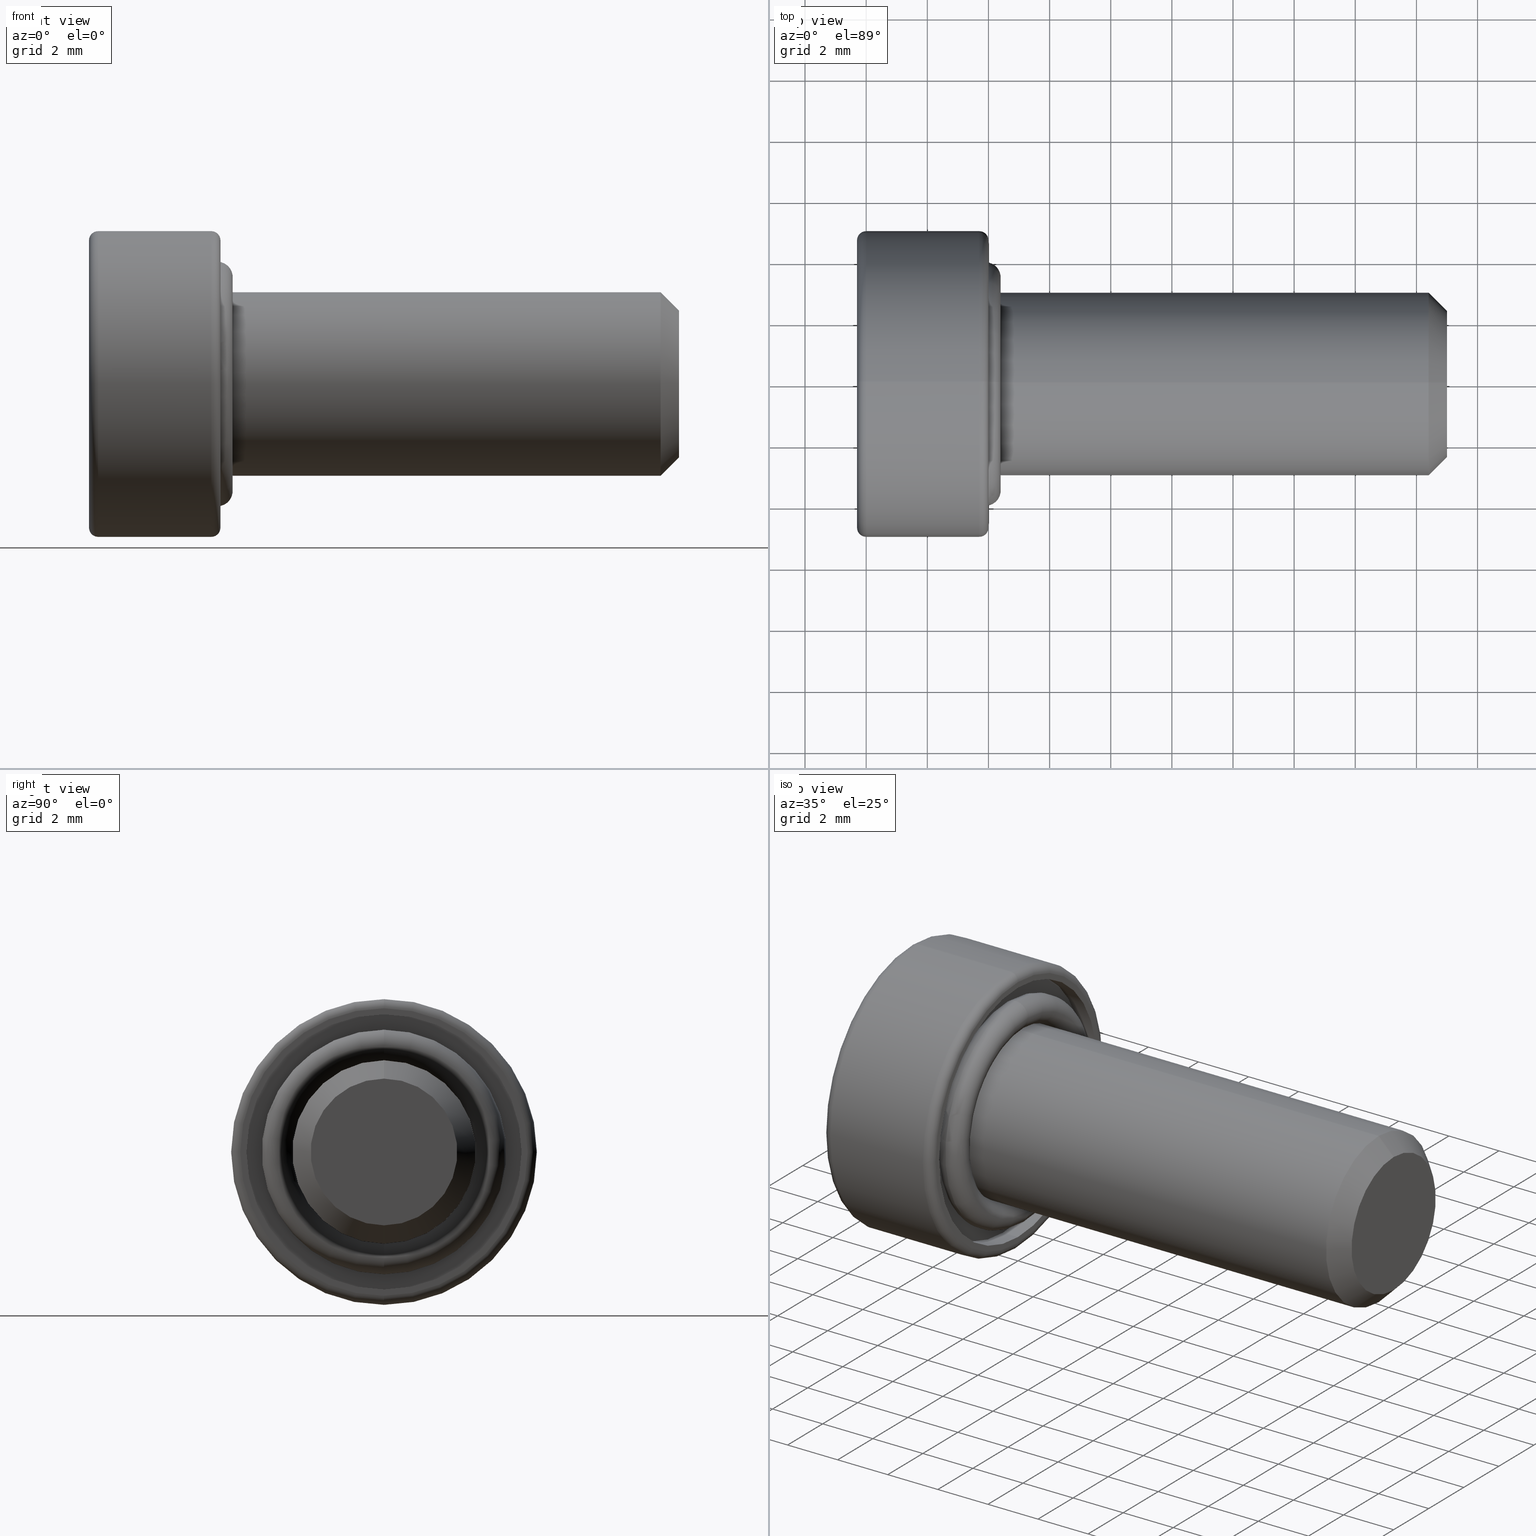
[diagram: canonical four-view strip — front | top / right | iso, engineering-drawing reading convention]
A machine part, canonical four-view strip (front | top / right | iso — engineering-drawing reading convention). The complete STEP part file that produces these views, byte-faithful:
ISO-10303-21;
HEADER;
FILE_DESCRIPTION (( 'STEP AP214' ),
    '1' );
FILE_NAME ('TL_418_M6_15.STEP',
    '2016-01-25T00:23:31',
    ( '' ),
    ( '' ),
    'SwSTEP 2.0',
    'SolidWorks 2015',
    '' );
FILE_SCHEMA (( 'AUTOMOTIVE_DESIGN' ));
ENDSEC;

DATA;
#1 = DIRECTION ( 'NONE',  ( 1.000000000000000000, 0.0000000000000000000, 0.0000000000000000000 ) ) ;
#2 = EDGE_CURVE ( 'NONE', #225, #95, #173, .T. ) ;
#3 = CARTESIAN_POINT ( 'NONE',  ( -0.1000000000000000700, 0.0000000000000000000, 0.0000000000000000000 ) ) ;
#4 = ORIENTED_EDGE ( 'NONE', *, *, #752, .F. ) ;
#5 = PLANE ( 'NONE',  #93 ) ;
#6 = CARTESIAN_POINT ( 'NONE',  ( -0.1000000000000000100, 0.0000000000000000000, 0.0000000000000000000 ) ) ;
#7 = DIRECTION ( 'NONE',  ( 0.0000000000000000000, 0.0000000000000000000, -1.000000000000000000 ) ) ;
#8 = CARTESIAN_POINT ( 'NONE',  ( -0.5999999999999999800, 0.0000000000000000000, 0.0000000000000000000 ) ) ;
#9 = CYLINDRICAL_SURFACE ( 'NONE', #13, 3.000000000000000400 ) ;
#10 = APPLICATION_CONTEXT ( 'automotive_design' ) ;
#11 = CARTESIAN_POINT ( 'NONE',  ( -0.1000000000000000100, 0.0000000000000000000, 0.0000000000000000000 ) ) ;
#12 = MECHANICAL_DESIGN_GEOMETRIC_PRESENTATION_REPRESENTATION (  '', ( #738 ), #50 ) ;
#13 = AXIS2_PLACEMENT_3D ( 'NONE', #324, #341, #750 ) ;
#14 = VERTEX_POINT ( 'NONE', #270 ) ;
#15 = EDGE_CURVE ( 'NONE', #808, #364, #651, .T. ) ;
#16 = DIRECTION ( 'NONE',  ( 0.0000000000000000000, 0.0000000000000000000, 1.000000000000000000 ) ) ;
#17 = DIRECTION ( 'NONE',  ( 0.0000000000000000000, 0.5000000000000000000, -0.8660254037844386000 ) ) ;
#18 = ORIENTED_EDGE ( 'NONE', *, *, #398, .F. ) ;
#19 = VECTOR ( 'NONE', #640, 1000.000000000000200 ) ;
#20 = CARTESIAN_POINT ( 'NONE',  ( 0.0000000000000000000, 0.0000000000000000000, 0.0000000000000000000 ) ) ;
#21 = DIRECTION ( 'NONE',  ( 1.000000000000000000, -0.0000000000000000000, -0.0000000000000000000 ) ) ;
#22 = ORIENTED_EDGE ( 'NONE', *, *, #24, .F. ) ;
#23 = EDGE_LOOP ( 'NONE', ( #394, #602 ) ) ;
#24 = EDGE_CURVE ( 'NONE', #42, #39, #818, .T. ) ;
#25 = EDGE_CURVE ( 'NONE', #451, #454, #326, .T. ) ;
#26 = EDGE_LOOP ( 'NONE', ( #360, #665, #114, #678 ) ) ;
#27 = ORIENTED_EDGE ( 'NONE', *, *, #330, .F. ) ;
#28 = DIRECTION ( 'NONE',  ( 0.0000000000000000000, 0.0000000000000000000, -1.000000000000000000 ) ) ;
#29 = PRESENTATION_LAYER_ASSIGNMENT (  '', '', ( #805 ) ) ;
#30 = CARTESIAN_POINT ( 'NONE',  ( 0.0000000000000000000, 0.0000000000000000000, 0.0000000000000000000 ) ) ;
#31 = DIRECTION ( 'NONE',  ( 0.0000000000000000000, 0.0000000000000000000, -1.000000000000000000 ) ) ;
#32 = AXIS2_PLACEMENT_3D ( 'NONE', #8, #192, #392 ) ;
#33 = TOROIDAL_SURFACE ( 'NONE', #739, 3.499999999999999600, 0.5000000000000001100 ) ;
#34 = DIRECTION ( 'NONE',  ( 0.0000000000000000000, 0.0000000000000000000, -1.000000000000000000 ) ) ;
#35 = EDGE_CURVE ( 'NONE', #218, #160, #503, .T. ) ;
#36 = FILL_AREA_STYLE ('',( #342 ) ) ;
#37 = ADVANCED_FACE ( 'NONE', ( #799 ), #134, .T. ) ;
#38 = LINE ( 'NONE', #567, #19 ) ;
#39 = VERTEX_POINT ( 'NONE', #205 ) ;
#40 = ORIENTED_EDGE ( 'NONE', *, *, #710, .F. ) ;
#41 = EDGE_LOOP ( 'NONE', ( #135, #375 ) ) ;
#42 = VERTEX_POINT ( 'NONE', #424 ) ;
#43 = PLANE ( 'NONE',  #495 ) ;
#44 = SHAPE_REPRESENTATION_RELATIONSHIP ( 'NONE' , 'NONE' ,  #562, #252 ) ;
#45 = FACE_OUTER_BOUND ( 'NONE', #526, .T. ) ;
#46 = ORIENTED_EDGE ( 'NONE', *, *, #731, .F. ) ;
#47 = DIRECTION ( 'NONE',  ( -0.0000000000000000000, -1.000000000000000000, -0.0000000000000000000 ) ) ;
#48 = ORIENTED_EDGE ( 'NONE', *, *, #414, .F. ) ;
#49 = UNCERTAINTY_MEASURE_WITH_UNIT (LENGTH_MEASURE( 1.000000000000000100E-005 ), #357, 'distance_accuracy_value', 'NONE');
#50 =( GEOMETRIC_REPRESENTATION_CONTEXT ( 3 ) GLOBAL_UNCERTAINTY_ASSIGNED_CONTEXT ( ( #740 ) ) GLOBAL_UNIT_ASSIGNED_CONTEXT ( ( #162, #92, #396 ) ) REPRESENTATION_CONTEXT ( 'NONE', 'WORKASPACE' ) );
#51 = ADVANCED_FACE ( 'NONE', ( #626 ), #523, .F. ) ;
#52 = PLANE ( 'NONE',  #145 ) ;
#53 = CIRCLE ( 'NONE', #299, 2.999999999999999600 ) ;
#54 = PRESENTATION_STYLE_ASSIGNMENT (( #264 ) ) ;
#55 = VERTEX_POINT ( 'NONE', #686 ) ;
#56 = ADVANCED_FACE ( 'NONE', ( #609 ), #436, .T. ) ;
#57 = EDGE_CURVE ( 'NONE', #199, #267, #783, .T. ) ;
#58 = ORIENTED_EDGE ( 'NONE', *, *, #346, .F. ) ;
#59 = DIRECTION ( 'NONE',  ( 0.0000000000000000000, 0.0000000000000000000, -1.000000000000000000 ) ) ;
#60 = ADVANCED_FACE ( 'NONE', ( #155 ), #760, .F. ) ;
#61 = DIRECTION ( 'NONE',  ( 0.0000000000000000000, 0.0000000000000000000, -1.000000000000000000 ) ) ;
#62 = EDGE_CURVE ( 'NONE', #451, #239, #112, .T. ) ;
#63 = APPLICATION_PROTOCOL_DEFINITION ( 'draft international standard', 'automotive_design', 1998, #10 ) ;
#64 = CARTESIAN_POINT ( 'NONE',  ( -4.299999999999999800, 6.123233995736765300E-016, 5.000000000000000000 ) ) ;
#65 = VERTEX_POINT ( 'NONE', #548 ) ;
#66 = ADVANCED_FACE ( 'NONE', ( #756 ), #471, .T. ) ;
#67 = FACE_BOUND ( 'NONE', #787, .T. ) ;
#68 = CARTESIAN_POINT ( 'NONE',  ( 15.00000000000000000, 0.0000000000000000000, 0.0000000000000000000 ) ) ;
#69 = MECHANICAL_DESIGN_GEOMETRIC_PRESENTATION_REPRESENTATION (  '', ( #805 ), #116 ) ;
#70 = CARTESIAN_POINT ( 'NONE',  ( -0.5999999999999999800, 0.0000000000000000000, 0.0000000000000000000 ) ) ;
#71 = ORIENTED_EDGE ( 'NONE', *, *, #786, .F. ) ;
#72 = EDGE_LOOP ( 'NONE', ( #22, #654, #754, #747 ) ) ;
#73 = AXIS2_PLACEMENT_3D ( 'NONE', #777, #290, #358 ) ;
#74 = AXIS2_PLACEMENT_3D ( 'NONE', #152, #734, #16 ) ;
#75 = ADVANCED_FACE ( 'NONE', ( #292 ), #403, .T. ) ;
#76 = DIRECTION ( 'NONE',  ( 0.0000000000000000000, 0.0000000000000000000, -1.000000000000000000 ) ) ;
#77 = ORIENTED_EDGE ( 'NONE', *, *, #668, .T. ) ;
#78 = ADVANCED_FACE ( 'NONE', ( #259 ), #421, .T. ) ;
#79 = ORIENTED_EDGE ( 'NONE', *, *, #291, .F. ) ;
#80 = DIRECTION ( 'NONE',  ( 1.000000000000000000, -0.0000000000000000000, -0.0000000000000000000 ) ) ;
#81 = DIRECTION ( 'NONE',  ( 0.0000000000000000000, 1.224646799147353200E-016, 1.000000000000000000 ) ) ;
#82 = EDGE_CURVE ( 'NONE', #733, #708, #730, .T. ) ;
#83 = ORIENTED_EDGE ( 'NONE', *, *, #166, .F. ) ;
#84 = DIRECTION ( 'NONE',  ( 0.0000000000000000000, 0.0000000000000000000, -1.000000000000000000 ) ) ;
#85 = CARTESIAN_POINT ( 'NONE',  ( -1.800000000000000000, -2.309401076758518000, 8.673617379884035500E-016 ) ) ;
#86 = CARTESIAN_POINT ( 'NONE',  ( -1.800000000000000000, -1.154700538379260100, 2.000000000000015100 ) ) ;
#87 = ORIENTED_EDGE ( 'NONE', *, *, #731, .T. ) ;
#88 = VECTOR ( 'NONE', #265, 1000.000000000000100 ) ;
#89 = FACE_OUTER_BOUND ( 'NONE', #72, .T. ) ;
#90 = VERTEX_POINT ( 'NONE', #581 ) ;
#91 = ADVANCED_FACE ( 'NONE', ( #97 ), #43, .F. ) ;
#92 =( NAMED_UNIT ( * ) PLANE_ANGLE_UNIT ( ) SI_UNIT ( $, .RADIAN. ) );
#93 = AXIS2_PLACEMENT_3D ( 'NONE', #652, #517, #59 ) ;
#94 = CARTESIAN_POINT ( 'NONE',  ( 14.40000000000000000, 3.673940397442060400E-016, -3.000000000000000400 ) ) ;
#95 = VERTEX_POINT ( 'NONE', #369 ) ;
#96 = CARTESIAN_POINT ( 'NONE',  ( -1.800000000000000000, 1.154700538379260600, -2.000000000000013800 ) ) ;
#97 = FACE_OUTER_BOUND ( 'NONE', #707, .T. ) ;
#98 = APPLICATION_CONTEXT ( 'automotive_design' ) ;
#99 = VERTEX_POINT ( 'NONE', #612 ) ;
#100 = SURFACE_SIDE_STYLE ('',( #229 ) ) ;
#101 = AXIS2_PLACEMENT_3D ( 'NONE', #429, #431, #224 ) ;
#102 = AXIS2_PLACEMENT_3D ( 'NONE', #430, #266, #489 ) ;
#103 = LINE ( 'NONE', #221, #228 ) ;
#104 = FACE_OUTER_BOUND ( 'NONE', #41, .T. ) ;
#105 = ORIENTED_EDGE ( 'NONE', *, *, #233, .T. ) ;
#106 = ORIENTED_EDGE ( 'NONE', *, *, #531, .F. ) ;
#107 = ORIENTED_EDGE ( 'NONE', *, *, #488, .T. ) ;
#108 = EDGE_CURVE ( 'NONE', #160, #225, #714, .T. ) ;
#109 = EDGE_CURVE ( 'NONE', #708, #267, #547, .T. ) ;
#110 = EDGE_LOOP ( 'NONE', ( #198, #107, #370, #71 ) ) ;
#111 = LINE ( 'NONE', #781, #258 ) ;
#112 = CIRCLE ( 'NONE', #806, 0.2999999999999999300 ) ;
#113 = EDGE_LOOP ( 'NONE', ( #744, #726, #556, #230 ) ) ;
#114 = ORIENTED_EDGE ( 'NONE', *, *, #398, .T. ) ;
#115 = CARTESIAN_POINT ( 'NONE',  ( -0.2999999999999999300, 0.0000000000000000000, 0.0000000000000000000 ) ) ;
#116 =( GEOMETRIC_REPRESENTATION_CONTEXT ( 3 ) GLOBAL_UNCERTAINTY_ASSIGNED_CONTEXT ( ( #347 ) ) GLOBAL_UNIT_ASSIGNED_CONTEXT ( ( #599, #269, #410 ) ) REPRESENTATION_CONTEXT ( 'NONE', 'WORKASPACE' ) );
#117 = AXIS2_PLACEMENT_3D ( 'NONE', #784, #281, #356 ) ;
#118 = AXIS2_PLACEMENT_3D ( 'NONE', #773, #552, #621 ) ;
#119 = EDGE_LOOP ( 'NONE', ( #87, #550, #83, #170 ) ) ;
#120 = ADVANCED_FACE ( 'NONE', ( #67, #237 ), #623, .F. ) ;
#121 = DIRECTION ( 'NONE',  ( -1.000000000000000000, 0.0000000000000000000, 0.0000000000000000000 ) ) ;
#122 = LINE ( 'NONE', #64, #600 ) ;
#123 = VECTOR ( 'NONE', #147, 1000.000000000000000 ) ;
#124 = ORIENTED_EDGE ( 'NONE', *, *, #109, .T. ) ;
#125 = DIRECTION ( 'NONE',  ( 0.0000000000000000000, 0.0000000000000000000, -1.000000000000000000 ) ) ;
#126 = CARTESIAN_POINT ( 'NONE',  ( -4.299999999999999800, -2.309401076758518000, 8.673617379884035500E-016 ) ) ;
#127 = ORIENTED_EDGE ( 'NONE', *, *, #461, .T. ) ;
#128 = ORIENTED_EDGE ( 'NONE', *, *, #15, .F. ) ;
#129 = DIRECTION ( 'NONE',  ( -1.000000000000000000, -0.0000000000000000000, -0.0000000000000000000 ) ) ;
#130 = CARTESIAN_POINT ( 'NONE',  ( -4.000000000000000000, 0.0000000000000000000, -4.700000000000000200 ) ) ;
#131 = EDGE_LOOP ( 'NONE', ( #27, #610, #603, #278 ) ) ;
#132 = AXIS2_PLACEMENT_3D ( 'NONE', #717, #220, #84 ) ;
#133 = FACE_OUTER_BOUND ( 'NONE', #542, .T. ) ;
#134 = CYLINDRICAL_SURFACE ( 'NONE', #74, 3.000000000000000400 ) ;
#135 = ORIENTED_EDGE ( 'NONE', *, *, #659, .T. ) ;
#136 = ORIENTED_EDGE ( 'NONE', *, *, #25, .F. ) ;
#137 = DIRECTION ( 'NONE',  ( -1.000000000000000000, -0.0000000000000000000, -0.0000000000000000000 ) ) ;
#138 = PRODUCT_CONTEXT ( 'NONE', #10, 'mechanical' ) ;
#139 = FACE_OUTER_BOUND ( 'NONE', #704, .T. ) ;
#140 = CARTESIAN_POINT ( 'NONE',  ( -4.299999999999999800, 0.0000000000000000000, -5.000000000000000000 ) ) ;
#141 = CIRCLE ( 'NONE', #144, 4.700000000000000200 ) ;
#142 = DIRECTION ( 'NONE',  ( 0.0000000000000000000, 0.0000000000000000000, -1.000000000000000000 ) ) ;
#143 = ADVANCED_FACE ( 'NONE', ( #45 ), #223, .T. ) ;
#144 = AXIS2_PLACEMENT_3D ( 'NONE', #286, #343, #28 ) ;
#145 = AXIS2_PLACEMENT_3D ( 'NONE', #615, #193, #815 ) ;
#146 = DIRECTION ( 'NONE',  ( 0.0000000000000000000, 0.0000000000000000000, 1.000000000000000000 ) ) ;
#147 = DIRECTION ( 'NONE',  ( 1.000000000000000000, 0.0000000000000000000, 0.0000000000000000000 ) ) ;
#148 = CARTESIAN_POINT ( 'NONE',  ( -1.800000000000000000, 1.154700538379259000, 2.000000000000013300 ) ) ;
#149 = ORIENTED_EDGE ( 'NONE', *, *, #157, .F. ) ;
#150 = CARTESIAN_POINT ( 'NONE',  ( -1.800000000000000000, -1.154700538379260100, 2.000000000000015100 ) ) ;
#151 = CARTESIAN_POINT ( 'NONE',  ( 0.0000000000000000000, 0.0000000000000000000, -4.700000000000000200 ) ) ;
#152 = CARTESIAN_POINT ( 'NONE',  ( 15.00000000000000000, 0.0000000000000000000, 0.0000000000000000000 ) ) ;
#153 = DIRECTION ( 'NONE',  ( 0.0000000000000000000, 0.0000000000000000000, -1.000000000000000000 ) ) ;
#154 = VECTOR ( 'NONE', #129, 1000.000000000000000 ) ;
#155 = FACE_OUTER_BOUND ( 'NONE', #119, .T. ) ;
#156 = DIRECTION ( 'NONE',  ( 1.000000000000000000, 0.0000000000000000000, 0.0000000000000000000 ) ) ;
#157 = EDGE_CURVE ( 'NONE', #401, #14, #571, .T. ) ;
#158 = ORIENTED_EDGE ( 'NONE', *, *, #82, .T. ) ;
#159 = PRODUCT_RELATED_PRODUCT_CATEGORY ( 'part', '', ( #361 ) ) ;
#160 = VERTEX_POINT ( 'NONE', #379 ) ;
#161 = FILL_AREA_STYLE_COLOUR ( '', #484 ) ;
#162 =( LENGTH_UNIT ( ) NAMED_UNIT ( * ) SI_UNIT ( .MILLI., .METRE. ) );
#163 = AXIS2_PLACEMENT_3D ( 'NONE', #456, #711, #320 ) ;
#164 = ORIENTED_EDGE ( 'NONE', *, *, #488, .F. ) ;
#165 = ORIENTED_EDGE ( 'NONE', *, *, #440, .T. ) ;
#166 = EDGE_CURVE ( 'NONE', #813, #669, #385, .T. ) ;
#167 = CIRCLE ( 'NONE', #227, 4.500000000000000000 ) ;
#168 = CARTESIAN_POINT ( 'NONE',  ( -0.1000000000000000100, 0.0000000000000000000, 0.0000000000000000000 ) ) ;
#169 = PRODUCT_DEFINITION_SHAPE ( 'NONE', 'NONE',  #491 ) ;
#170 = ORIENTED_EDGE ( 'NONE', *, *, #247, .T. ) ;
#171 = VECTOR ( 'NONE', #297, 1000.000000000000000 ) ;
#172 = FACE_OUTER_BOUND ( 'NONE', #215, .T. ) ;
#173 = CIRCLE ( 'NONE', #672, 0.5000000000000004400 ) ;
#174 = EDGE_LOOP ( 'NONE', ( #622, #306, #236, #79 ) ) ;
#175 = CARTESIAN_POINT ( 'NONE',  ( -0.5999999999999999800, 0.0000000000000000000, -4.500000000000000000 ) ) ;
#176 = AXIS2_PLACEMENT_3D ( 'NONE', #404, #321, #584 ) ;
#177 = ADVANCED_FACE ( 'NONE', ( #691 ), #33, .T. ) ;
#178 = DIRECTION ( 'NONE',  ( 0.0000000000000000000, 1.000000000000000000, -1.224646799147353200E-016 ) ) ;
#179 = ADVANCED_FACE ( 'NONE', ( #359 ), #9, .T. ) ;
#180 = FACE_OUTER_BOUND ( 'NONE', #23, .T. ) ;
#181 = ADVANCED_FACE ( 'NONE', ( #673 ), #515, .T. ) ;
#182 = ADVANCED_FACE ( 'NONE', ( #493 ), #643, .T. ) ;
#183 = DIRECTION ( 'NONE',  ( 0.0000000000000000000, 0.0000000000000000000, 1.000000000000000000 ) ) ;
#184 = AXIS2_PLACEMENT_3D ( 'NONE', #553, #568, #319 ) ;
#185 = ADVANCED_FACE ( 'NONE', ( #366, #180 ), #52, .T. ) ;
#186 = DIRECTION ( 'NONE',  ( -0.7071067811865489100, 8.659560562354918100E-017, -0.7071067811865462400 ) ) ;
#187 = LINE ( 'NONE', #809, #816 ) ;
#188 = VERTEX_POINT ( 'NONE', #257 ) ;
#189 = DIRECTION ( 'NONE',  ( -0.0000000000000000000, -0.5000000000000000000, 0.8660254037844386000 ) ) ;
#190 = EDGE_CURVE ( 'NONE', #454, #451, #662, .T. ) ;
#191 = ORIENTED_EDGE ( 'NONE', *, *, #540, .T. ) ;
#192 = DIRECTION ( 'NONE',  ( 1.000000000000000000, 0.0000000000000000000, 0.0000000000000000000 ) ) ;
#193 = DIRECTION ( 'NONE',  ( 1.000000000000000000, 0.0000000000000000000, 0.0000000000000000000 ) ) ;
#194 = EDGE_CURVE ( 'NONE', #746, #239, #811, .T. ) ;
#195 = PRODUCT_DEFINITION_FORMATION_WITH_SPECIFIED_SOURCE ( 'ANY', '', #481, .NOT_KNOWN. ) ;
#196 = DIRECTION ( 'NONE',  ( -0.0000000000000000000, -1.000000000000000000, -0.0000000000000000000 ) ) ;
#197 = CARTESIAN_POINT ( 'NONE',  ( 15.00000000000000000, 0.0000000000000000000, 0.0000000000000000000 ) ) ;
#198 = ORIENTED_EDGE ( 'NONE', *, *, #400, .T. ) ;
#199 = VERTEX_POINT ( 'NONE', #618 ) ;
#200 = CARTESIAN_POINT ( 'NONE',  ( 0.0000000000000000000, 5.939536975864663000E-016, 4.700000000000000200 ) ) ;
#201 = VECTOR ( 'NONE', #244, 1000.000000000000000 ) ;
#202 = AXIS2_PLACEMENT_3D ( 'NONE', #499, #465, #76 ) ;
#203 = AXIS2_PLACEMENT_3D ( 'NONE', #381, #462, #636 ) ;
#204 = DIRECTION ( 'NONE',  ( 0.0000000000000000000, 0.0000000000000000000, -1.000000000000000000 ) ) ;
#205 = CARTESIAN_POINT ( 'NONE',  ( 0.0000000000000000000, 5.510910596163088600E-016, 4.500000000000000000 ) ) ;
#206 = ORIENTED_EDGE ( 'NONE', *, *, #751, .F. ) ;
#207 = PLANE ( 'NONE',  #632 ) ;
#208 = CARTESIAN_POINT ( 'NONE',  ( -4.000000000000000000, 5.755839955992559700E-016, 4.700000000000000200 ) ) ;
#209 = DIRECTION ( 'NONE',  ( 1.000000000000000000, 0.0000000000000000000, 0.0000000000000000000 ) ) ;
#210 = DIRECTION ( 'NONE',  ( 0.0000000000000000000, 0.0000000000000000000, -1.000000000000000000 ) ) ;
#211 = CARTESIAN_POINT ( 'NONE',  ( -0.2999999999999999300, 6.123233995736765300E-016, 5.000000000000000000 ) ) ;
#212 = DIRECTION ( 'NONE',  ( 0.0000000000000000000, 0.0000000000000000000, -1.000000000000000000 ) ) ;
#213 = VERTEX_POINT ( 'NONE', #253 ) ;
#214 = VECTOR ( 'NONE', #137, 1000.000000000000000 ) ;
#215 = EDGE_LOOP ( 'NONE', ( #477, #423, #467, #128 ) ) ;
#216 = APPLICATION_PROTOCOL_DEFINITION ( 'draft international standard', 'automotive_design', 1998, #513 ) ;
#217 = DIRECTION ( 'NONE',  ( 1.000000000000000000, 0.0000000000000000000, 0.0000000000000000000 ) ) ;
#218 = VERTEX_POINT ( 'NONE', #425 ) ;
#219 = AXIS2_PLACEMENT_3D ( 'NONE', #681, #469, #701 ) ;
#220 = DIRECTION ( 'NONE',  ( -1.000000000000000000, -0.0000000000000000000, -0.0000000000000000000 ) ) ;
#221 = CARTESIAN_POINT ( 'NONE',  ( -1.800000000000000000, 2.309401076758518900, 8.673617379884035500E-016 ) ) ;
#222 = ORIENTED_EDGE ( 'NONE', *, *, #62, .F. ) ;
#223 = TOROIDAL_SURFACE ( 'NONE', #698, 4.700000000000000200, 0.2999999999999999900 ) ;
#224 = DIRECTION ( 'NONE',  ( 0.0000000000000000000, 0.0000000000000000000, -1.000000000000000000 ) ) ;
#225 = VERTEX_POINT ( 'NONE', #575 ) ;
#226 =( NAMED_UNIT ( * ) SI_UNIT ( $, .STERADIAN. ) SOLID_ANGLE_UNIT ( ) );
#227 = AXIS2_PLACEMENT_3D ( 'NONE', #70, #457, #61 ) ;
#228 = VECTOR ( 'NONE', #522, 1000.000000000000000 ) ;
#229 = SURFACE_STYLE_FILL_AREA ( #36 ) ;
#230 = ORIENTED_EDGE ( 'NONE', *, *, #109, .F. ) ;
#231 = EDGE_CURVE ( 'NONE', #42, #808, #167, .T. ) ;
#232 = ORIENTED_EDGE ( 'NONE', *, *, #634, .F. ) ;
#233 = EDGE_CURVE ( 'NONE', #454, #746, #338, .T. ) ;
#234 = PRODUCT_RELATED_PRODUCT_CATEGORY ( 'part', '', ( #481 ) ) ;
#235 = DIRECTION ( 'NONE',  ( 1.000000000000000000, -0.0000000000000000000, -0.0000000000000000000 ) ) ;
#236 = ORIENTED_EDGE ( 'NONE', *, *, #440, .F. ) ;
#237 = FACE_OUTER_BOUND ( 'NONE', #397, .T. ) ;
#238 = DIRECTION ( 'NONE',  ( 0.0000000000000000000, -1.000000000000000000, 7.511572993685746800E-016 ) ) ;
#239 = VERTEX_POINT ( 'NONE', #200 ) ;
#240 = AXIS2_PLACEMENT_3D ( 'NONE', #765, #433, #532 ) ;
#241 = AXIS2_PLACEMENT_3D ( 'NONE', #510, #217, #753 ) ;
#242 = AXIS2_PLACEMENT_3D ( 'NONE', #767, #387, #238 ) ;
#243 = ORIENTED_EDGE ( 'NONE', *, *, #261, .F. ) ;
#244 = DIRECTION ( 'NONE',  ( -0.0000000000000000000, 1.000000000000000000, -7.511572993685745900E-016 ) ) ;
#245 = DIRECTION ( 'NONE',  ( 0.0000000000000000000, 0.0000000000000000000, -1.000000000000000000 ) ) ;
#246 = DIRECTION ( 'NONE',  ( 1.000000000000000000, 0.0000000000000000000, 0.0000000000000000000 ) ) ;
#247 = EDGE_CURVE ( 'NONE', #813, #250, #791, .T. ) ;
#248 = LINE ( 'NONE', #596, #88 ) ;
#249 = FACE_OUTER_BOUND ( 'NONE', #801, .T. ) ;
#250 = VERTEX_POINT ( 'NONE', #628 ) ;
#251 = DIRECTION ( 'NONE',  ( 0.0000000000000000000, 0.0000000000000000000, -1.000000000000000000 ) ) ;
#252 = ADVANCED_BREP_SHAPE_REPRESENTATION ( '', ( #674, #768, #671 ), #712 ) ;
#253 = CARTESIAN_POINT ( 'NONE',  ( -4.299999999999999800, 2.309401076758518900, 8.673617379884035500E-016 ) ) ;
#254 = DIRECTION ( 'NONE',  ( 0.0000000000000000000, 0.0000000000000000000, -1.000000000000000000 ) ) ;
#255 = PLANE ( 'NONE',  #73 ) ;
#256 = AXIS2_PLACEMENT_3D ( 'NONE', #168, #463, #629 ) ;
#257 = CARTESIAN_POINT ( 'NONE',  ( -4.000000000000000000, 6.123233995736765300E-016, 5.000000000000000000 ) ) ;
#258 = VECTOR ( 'NONE', #661, 1000.000000000000000 ) ;
#259 = FACE_OUTER_BOUND ( 'NONE', #353, .T. ) ;
#260 = CARTESIAN_POINT ( 'NONE',  ( 0.0000000000000000000, 0.0000000000000000000, 0.0000000000000000000 ) ) ;
#261 = EDGE_CURVE ( 'NONE', #65, #813, #317, .T. ) ;
#262 = DIRECTION ( 'NONE',  ( 1.000000000000000000, 0.0000000000000000000, 0.0000000000000000000 ) ) ;
#263 = ADVANCED_FACE ( 'NONE', ( #139, #452 ), #646, .T. ) ;
#264 = SURFACE_STYLE_USAGE ( .BOTH. , #100 ) ;
#265 = DIRECTION ( 'NONE',  ( -0.0000000000000000000, 0.4999999999999993300, 0.8660254037844389300 ) ) ;
#266 = DIRECTION ( 'NONE',  ( -1.000000000000000000, -0.0000000000000000000, -0.0000000000000000000 ) ) ;
#267 = VERTEX_POINT ( 'NONE', #422 ) ;
#268 = ORIENTED_EDGE ( 'NONE', *, *, #194, .T. ) ;
#269 =( NAMED_UNIT ( * ) PLANE_ANGLE_UNIT ( ) SI_UNIT ( $, .RADIAN. ) );
#270 = CARTESIAN_POINT ( 'NONE',  ( -4.299999999999999800, -2.309401076758518000, 8.673617379884035500E-016 ) ) ;
#271 = CARTESIAN_POINT ( 'NONE',  ( -4.299999999999999800, 0.0000000000000000000, 0.0000000000000000000 ) ) ;
#272 = CARTESIAN_POINT ( 'NONE',  ( -1.800000000000000000, 1.154700538379259000, 2.000000000000013300 ) ) ;
#273 = DIRECTION ( 'NONE',  ( -0.0000000000000000000, 0.4999999999999993300, 0.8660254037844389300 ) ) ;
#274 = LINE ( 'NONE', #96, #741 ) ;
#275 = AXIS2_PLACEMENT_3D ( 'NONE', #455, #327, #476 ) ;
#276 = AXIS2_PLACEMENT_3D ( 'NONE', #345, #633, #142 ) ;
#277 = FACE_OUTER_BOUND ( 'NONE', #26, .T. ) ;
#278 = ORIENTED_EDGE ( 'NONE', *, *, #190, .T. ) ;
#279 = ORIENTED_EDGE ( 'NONE', *, *, #461, .F. ) ;
#280 = CARTESIAN_POINT ( 'NONE',  ( 15.00000000000000000, 0.0000000000000000000, 3.000000000000000400 ) ) ;
#281 = DIRECTION ( 'NONE',  ( 1.000000000000000000, -0.0000000000000000000, -0.0000000000000000000 ) ) ;
#282 = PRODUCT_DEFINITION_SHAPE ( 'NONE', 'NONE',  #820 ) ;
#283 = CARTESIAN_POINT ( 'NONE',  ( 14.40000000000000000, 0.0000000000000000000, 0.0000000000000000000 ) ) ;
#284 = ORIENTED_EDGE ( 'NONE', *, *, #417, .T. ) ;
#285 =( NAMED_UNIT ( * ) PLANE_ANGLE_UNIT ( ) SI_UNIT ( $, .RADIAN. ) );
#286 = CARTESIAN_POINT ( 'NONE',  ( -4.299999999999999800, 0.0000000000000000000, 0.0000000000000000000 ) ) ;
#287 =( REPRESENTATION_RELATIONSHIP ('NONE','NONE', #498, #562 ) REPRESENTATION_RELATIONSHIP_WITH_TRANSFORMATION ( #337 )SHAPE_REPRESENTATION_RELATIONSHIP( ) );
#288 = ORIENTED_EDGE ( 'NONE', *, *, #583, .T. ) ;
#289 = CIRCLE ( 'NONE', #663, 2.400000000000003000 ) ;
#290 = DIRECTION ( 'NONE',  ( 0.0000000000000000000, 0.8660254037844390400, -0.4999999999999995000 ) ) ;
#291 = EDGE_CURVE ( 'NONE', #301, #99, #770, .T. ) ;
#292 = FACE_OUTER_BOUND ( 'NONE', #113, .T. ) ;
#293 =( NAMED_UNIT ( * ) SI_UNIT ( $, .STERADIAN. ) SOLID_ANGLE_UNIT ( ) );
#294 = CARTESIAN_POINT ( 'NONE',  ( -1.800000000000000000, 2.309401076758518900, 8.673617379884035500E-016 ) ) ;
#295 = AXIS2_PLACEMENT_3D ( 'NONE', #260, #473, #388 ) ;
#296 = PLANE ( 'NONE',  #275 ) ;
#297 = DIRECTION ( 'NONE',  ( -0.0000000000000000000, -1.000000000000000000, 3.755786496842872900E-016 ) ) ;
#298 = ORIENTED_EDGE ( 'NONE', *, *, #497, .T. ) ;
#299 = AXIS2_PLACEMENT_3D ( 'NONE', #3, #790, #31 ) ;
#300 = AXIS2_PLACEMENT_3D ( 'NONE', #313, #677, #383 ) ;
#301 = VERTEX_POINT ( 'NONE', #807 ) ;
#302 = ORIENTED_EDGE ( 'NONE', *, *, #658, .F. ) ;
#303 = VECTOR ( 'NONE', #273, 1000.000000000000100 ) ;
#304 = LINE ( 'NONE', #140, #123 ) ;
#305 = CARTESIAN_POINT ( 'NONE',  ( -0.5999999999999999800, 0.0000000000000000000, 0.0000000000000000000 ) ) ;
#306 = ORIENTED_EDGE ( 'NONE', *, *, #634, .T. ) ;
#307 = ADVANCED_FACE ( 'NONE', ( #480 ), #255, .F. ) ;
#308 = EDGE_LOOP ( 'NONE', ( #719, #288, #574, #428, #475, #416 ) ) ;
#309 = VECTOR ( 'NONE', #785, 1000.000000000000000 ) ;
#310 = VECTOR ( 'NONE', #314, 999.9999999999998900 ) ;
#311 = AXIS2_PLACEMENT_3D ( 'NONE', #771, #1, #382 ) ;
#312 = DIRECTION ( 'NONE',  ( 1.000000000000000000, -0.0000000000000000000, -0.0000000000000000000 ) ) ;
#313 = CARTESIAN_POINT ( 'NONE',  ( 15.00000000000000000, 0.0000000000000000000, 0.0000000000000000000 ) ) ;
#314 = DIRECTION ( 'NONE',  ( -0.7071067811865489100, 0.0000000000000000000, 0.7071067811865462400 ) ) ;
#315 = ORIENTED_EDGE ( 'NONE', *, *, #545, .F. ) ;
#316 = ORIENTED_EDGE ( 'NONE', *, *, #570, .T. ) ;
#317 = LINE ( 'NONE', #745, #303 ) ;
#318 = VECTOR ( 'NONE', #496, 1000.000000000000000 ) ;
#319 = DIRECTION ( 'NONE',  ( 0.0000000000000000000, 0.0000000000000000000, -1.000000000000000000 ) ) ;
#320 = DIRECTION ( 'NONE',  ( 0.0000000000000000000, 0.0000000000000000000, -1.000000000000000000 ) ) ;
#321 = DIRECTION ( 'NONE',  ( 0.0000000000000000000, -0.8660254037844390400, 0.4999999999999993900 ) ) ;
#322 = ORIENTED_EDGE ( 'NONE', *, *, #497, .F. ) ;
#323 = DIRECTION ( 'NONE',  ( 1.000000000000000000, 0.0000000000000000000, 0.0000000000000000000 ) ) ;
#324 = CARTESIAN_POINT ( 'NONE',  ( 15.00000000000000000, 0.0000000000000000000, 0.0000000000000000000 ) ) ;
#325 = LINE ( 'NONE', #692, #309 ) ;
#326 = CIRCLE ( 'NONE', #716, 5.000000000000000000 ) ;
#327 = DIRECTION ( 'NONE',  ( 1.000000000000000000, -0.0000000000000000000, 0.0000000000000000000 ) ) ;
#328 = CARTESIAN_POINT ( 'NONE',  ( -4.299999999999999800, -1.154700538379258300, -2.000000000000012900 ) ) ;
#329 = CARTESIAN_POINT ( 'NONE',  ( 0.0000000000000000000, 0.0000000000000000000, 0.0000000000000000000 ) ) ;
#330 = EDGE_CURVE ( 'NONE', #188, #451, #122, .T. ) ;
#331 = ORIENTED_EDGE ( 'NONE', *, *, #417, .F. ) ;
#332 = DIRECTION ( 'NONE',  ( -1.000000000000000000, 0.0000000000000000000, 0.0000000000000000000 ) ) ;
#333 =( GEOMETRIC_REPRESENTATION_CONTEXT ( 3 ) GLOBAL_UNCERTAINTY_ASSIGNED_CONTEXT ( ( #49 ) ) GLOBAL_UNIT_ASSIGNED_CONTEXT ( ( #357, #285, #226 ) ) REPRESENTATION_CONTEXT ( 'NONE', 'WORKASPACE' ) );
#334 = DIRECTION ( 'NONE',  ( 0.0000000000000000000, 0.0000000000000000000, -1.000000000000000000 ) ) ;
#335 = AXIS2_PLACEMENT_3D ( 'NONE', #519, #631, #709 ) ;
#336 = AXIS2_PLACEMENT_3D ( 'NONE', #700, #246, #561 ) ;
#337 = ITEM_DEFINED_TRANSFORMATION ( 'NONE', 'NONE', #295,  #671 ) ;
#338 = CIRCLE ( 'NONE', #276, 0.2999999999999999300 ) ;
#339 = SURFACE_SIDE_STYLE ('',( #591 ) ) ;
#340 = CARTESIAN_POINT ( 'NONE',  ( -0.1000000000000000100, 0.0000000000000000000, 0.0000000000000000000 ) ) ;
#341 = DIRECTION ( 'NONE',  ( -1.000000000000000000, -0.0000000000000000000, -0.0000000000000000000 ) ) ;
#342 = FILL_AREA_STYLE_COLOUR ( '', #393 ) ;
#343 = DIRECTION ( 'NONE',  ( -1.000000000000000000, -0.0000000000000000000, -0.0000000000000000000 ) ) ;
#344 = ORIENTED_EDGE ( 'NONE', *, *, #190, .F. ) ;
#345 = CARTESIAN_POINT ( 'NONE',  ( -0.2999999999999999300, 0.0000000000000000000, -4.700000000000000200 ) ) ;
#346 = EDGE_CURVE ( 'NONE', #546, #413, #274, .T. ) ;
#347 = UNCERTAINTY_MEASURE_WITH_UNIT (LENGTH_MEASURE( 1.000000000000000100E-005 ), #599, 'distance_accuracy_value', 'NONE');
#348 = LINE ( 'NONE', #328, #171 ) ;
#349 = VECTOR ( 'NONE', #355, 1000.000000000000000 ) ;
#350 = VECTOR ( 'NONE', #312, 1000.000000000000000 ) ;
#351 = DIRECTION ( 'NONE',  ( 0.0000000000000000000, 0.0000000000000000000, -1.000000000000000000 ) ) ;
#352 = EDGE_LOOP ( 'NONE', ( #48, #158, #415, #543 ) ) ;
#353 = EDGE_LOOP ( 'NONE', ( #222, #344, #105, #551 ) ) ;
#354 = AXIS2_PLACEMENT_3D ( 'NONE', #271, #156, #210 ) ;
#355 = DIRECTION ( 'NONE',  ( -1.000000000000000000, -0.0000000000000000000, -0.0000000000000000000 ) ) ;
#356 = DIRECTION ( 'NONE',  ( 0.0000000000000000000, 0.0000000000000000000, -1.000000000000000000 ) ) ;
#357 =( LENGTH_UNIT ( ) NAMED_UNIT ( * ) SI_UNIT ( .MILLI., .METRE. ) );
#358 = DIRECTION ( 'NONE',  ( 0.0000000000000000000, 0.4999999999999994400, 0.8660254037844389300 ) ) ;
#359 = FACE_OUTER_BOUND ( 'NONE', #606, .T. ) ;
#360 = ORIENTED_EDGE ( 'NONE', *, *, #108, .F. ) ;
#361 = PRODUCT ( 'TL_418_M6_15', 'TL_418_M6_15', '', ( #527 ) ) ;
#362 = VECTOR ( 'NONE', #758, 1000.000000000000200 ) ;
#363 = VERTEX_POINT ( 'NONE', #585 ) ;
#364 = VERTEX_POINT ( 'NONE', #564 ) ;
#365 = EDGE_CURVE ( 'NONE', #14, #250, #248, .T. ) ;
#366 = FACE_BOUND ( 'NONE', #607, .T. ) ;
#367 = AXIS2_PLACEMENT_3D ( 'NONE', #30, #146, #645 ) ;
#368 = AXIS2_PLACEMENT_3D ( 'NONE', #6, #695, #153 ) ;
#369 = CARTESIAN_POINT ( 'NONE',  ( -0.1000000000000000700, 3.673940397442059400E-016, 2.999999999999999600 ) ) ;
#370 = ORIENTED_EDGE ( 'NONE', *, *, #611, .T. ) ;
#371 = CARTESIAN_POINT ( 'NONE',  ( -4.000000000000000000, 0.0000000000000000000, 0.0000000000000000000 ) ) ;
#372 = DIRECTION ( 'NONE',  ( 0.0000000000000000000, 0.0000000000000000000, -1.000000000000000000 ) ) ;
#373 = ORIENTED_EDGE ( 'NONE', *, *, #587, .F. ) ;
#374 = CIRCLE ( 'NONE', #407, 0.5000000000000004400 ) ;
#375 = ORIENTED_EDGE ( 'NONE', *, *, #414, .T. ) ;
#376 = EDGE_CURVE ( 'NONE', #808, #42, #579, .T. ) ;
#377 = CARTESIAN_POINT ( 'NONE',  ( -0.5999999999999999800, 0.0000000000000000000, 0.0000000000000000000 ) ) ;
#378 = FILL_AREA_STYLE ('',( #749 ) ) ;
#379 = CARTESIAN_POINT ( 'NONE',  ( -0.1000000000000000100, 0.0000000000000000000, -4.000000000000000000 ) ) ;
#380 = STYLED_ITEM ( 'NONE', ( #54 ), #768 ) ;
#381 = CARTESIAN_POINT ( 'NONE',  ( -4.299999999999999800, 0.0000000000000000000, 0.0000000000000000000 ) ) ;
#382 = DIRECTION ( 'NONE',  ( 0.0000000000000000000, 0.0000000000000000000, -1.000000000000000000 ) ) ;
#383 = DIRECTION ( 'NONE',  ( 0.0000000000000000000, 0.0000000000000000000, 1.000000000000000000 ) ) ;
#384 = ORIENTED_EDGE ( 'NONE', *, *, #721, .F. ) ;
#385 = LINE ( 'NONE', #148, #201 ) ;
#386 = CARTESIAN_POINT ( 'NONE',  ( -4.000000000000000000, 0.0000000000000000000, 0.0000000000000000000 ) ) ;
#387 = DIRECTION ( 'NONE',  ( -0.0000000000000000000, 7.511572993685746800E-016, 1.000000000000000000 ) ) ;
#388 = DIRECTION ( 'NONE',  ( 1.000000000000000000, 0.0000000000000000000, 0.0000000000000000000 ) ) ;
#389 = CARTESIAN_POINT ( 'NONE',  ( -4.299999999999999800, 1.154700538379259000, 2.000000000000013300 ) ) ;
#390 = DIRECTION ( 'NONE',  ( 0.0000000000000000000, 0.0000000000000000000, -1.000000000000000000 ) ) ;
#391 = CIRCLE ( 'NONE', #241, 5.000000000000000000 ) ;
#392 = DIRECTION ( 'NONE',  ( 0.0000000000000000000, 0.0000000000000000000, -1.000000000000000000 ) ) ;
#393 = COLOUR_RGB ( '',0.7921568627450980000, 0.8196078431372548800, 0.9333333333333333500 ) ;
#394 = ORIENTED_EDGE ( 'NONE', *, *, #376, .T. ) ;
#395 = UNCERTAINTY_MEASURE_WITH_UNIT (LENGTH_MEASURE( 1.000000000000000100E-005 ), #779, 'distance_accuracy_value', 'NONE');
#396 =( NAMED_UNIT ( * ) SI_UNIT ( $, .STERADIAN. ) SOLID_ANGLE_UNIT ( ) );
#397 = EDGE_LOOP ( 'NONE', ( #802, #803 ) ) ;
#398 = EDGE_CURVE ( 'NONE', #218, #95, #722, .T. ) ;
#399 = CARTESIAN_POINT ( 'NONE',  ( -4.299999999999999800, -1.154700538379258100, -2.000000000000012900 ) ) ;
#400 = EDGE_CURVE ( 'NONE', #267, #708, #411, .T. ) ;
#401 = VERTEX_POINT ( 'NONE', #399 ) ;
#402 = PRESENTATION_STYLE_ASSIGNMENT (( #438 ) ) ;
#403 = CONICAL_SURFACE ( 'NONE', #300, 2.400000000000003000, 0.7853981633974465000 ) ;
#404 = CARTESIAN_POINT ( 'NONE',  ( -1.800000000000000000, -1.154700538379260100, 2.000000000000015100 ) ) ;
#405 = PRODUCT_DEFINITION ( 'UNKNOWN', '', #195, #724 ) ;
#406 = ORIENTED_EDGE ( 'NONE', *, *, #583, .F. ) ;
#407 = AXIS2_PLACEMENT_3D ( 'NONE', #442, #505, #560 ) ;
#408 = AXIS2_PLACEMENT_3D ( 'NONE', #439, #209, #334 ) ;
#409 = DIRECTION ( 'NONE',  ( 0.0000000000000000000, 1.224646799147352500E-016, 1.000000000000000000 ) ) ;
#410 =( NAMED_UNIT ( * ) SI_UNIT ( $, .STERADIAN. ) SOLID_ANGLE_UNIT ( ) );
#411 = CIRCLE ( 'NONE', #163, 3.000000000000000400 ) ;
#412 = TOROIDAL_SURFACE ( 'NONE', #256, 3.499999999999999600, 0.5000000000000001100 ) ;
#413 = VERTEX_POINT ( 'NONE', #578 ) ;
#414 = EDGE_CURVE ( 'NONE', #733, #199, #554, .T. ) ;
#415 = ORIENTED_EDGE ( 'NONE', *, *, #400, .F. ) ;
#416 = ORIENTED_EDGE ( 'NONE', *, *, #346, .T. ) ;
#417 = EDGE_CURVE ( 'NONE', #546, #213, #103, .T. ) ;
#418 = PRESENTATION_LAYER_ASSIGNMENT (  '', '', ( #380 ) ) ;
#419 = CIRCLE ( 'NONE', #101, 4.500000000000000000 ) ;
#420 = PRESENTATION_STYLE_ASSIGNMENT (( #459 ) ) ;
#421 = TOROIDAL_SURFACE ( 'NONE', #408, 4.700000000000000200, 0.2999999999999999900 ) ;
#422 = CARTESIAN_POINT ( 'NONE',  ( 14.40000000000000000, 0.0000000000000000000, 3.000000000000000400 ) ) ;
#423 = ORIENTED_EDGE ( 'NONE', *, *, #24, .T. ) ;
#424 = CARTESIAN_POINT ( 'NONE',  ( -0.5999999999999999800, 5.510910596163088600E-016, 4.500000000000000000 ) ) ;
#425 = CARTESIAN_POINT ( 'NONE',  ( -0.1000000000000000700, 0.0000000000000000000, -2.999999999999999600 ) ) ;
#426 = LINE ( 'NONE', #702, #214 ) ;
#427 = CIRCLE ( 'NONE', #132, 4.700000000000000200 ) ;
#428 = ORIENTED_EDGE ( 'NONE', *, *, #166, .T. ) ;
#429 = CARTESIAN_POINT ( 'NONE',  ( 0.0000000000000000000, 0.0000000000000000000, 0.0000000000000000000 ) ) ;
#430 = CARTESIAN_POINT ( 'NONE',  ( -0.2999999999999999300, 0.0000000000000000000, 0.0000000000000000000 ) ) ;
#431 = DIRECTION ( 'NONE',  ( 1.000000000000000000, 0.0000000000000000000, 0.0000000000000000000 ) ) ;
#432 = DIRECTION ( 'NONE',  ( 1.000000000000000000, -0.0000000000000000000, -0.0000000000000000000 ) ) ;
#433 = DIRECTION ( 'NONE',  ( 0.0000000000000000000, 0.0000000000000000000, 1.000000000000000000 ) ) ;
#434 = DIRECTION ( 'NONE',  ( 0.0000000000000000000, 0.0000000000000000000, -1.000000000000000000 ) ) ;
#435 = TOROIDAL_SURFACE ( 'NONE', #697, 3.499999999999999600, 0.5000000000000001100 ) ;
#436 = CYLINDRICAL_SURFACE ( 'NONE', #203, 5.000000000000000000 ) ;
#437 = APPLICATION_PROTOCOL_DEFINITION ( 'draft international standard', 'automotive_design', 1998, #764 ) ;
#438 = SURFACE_STYLE_USAGE ( .BOTH. , #474 ) ;
#439 = CARTESIAN_POINT ( 'NONE',  ( -0.2999999999999999300, 0.0000000000000000000, 0.0000000000000000000 ) ) ;
#440 = EDGE_CURVE ( 'NONE', #99, #188, #391, .T. ) ;
#441 = ORIENTED_EDGE ( 'NONE', *, *, #504, .F. ) ;
#442 = CARTESIAN_POINT ( 'NONE',  ( -0.1000000000000000100, 4.286263797015736100E-016, 3.499999999999999600 ) ) ;
#443 = DIRECTION ( 'NONE',  ( 0.0000000000000000000, -1.000000000000000000, 0.0000000000000000000 ) ) ;
#444 = CARTESIAN_POINT ( 'NONE',  ( -4.299999999999999800, 1.154700538379259000, 2.000000000000013300 ) ) ;
#445 = CARTESIAN_POINT ( 'NONE',  ( -0.1000000000000000100, 0.0000000000000000000, -3.499999999999999600 ) ) ;
#446 = CARTESIAN_POINT ( 'NONE',  ( -0.1000000000000000100, 0.0000000000000000000, 0.0000000000000000000 ) ) ;
#447 = AXIS2_PLACEMENT_3D ( 'NONE', #445, #196, #34 ) ;
#448 = AXIS2_PLACEMENT_3D ( 'NONE', #11, #432, #434 ) ;
#449 = DIRECTION ( 'NONE',  ( -0.0000000000000000000, -0.4999999999999994400, -0.8660254037844389300 ) ) ;
#450 = CARTESIAN_POINT ( 'NONE',  ( -0.1000000000000000100, 0.0000000000000000000, -3.499999999999999600 ) ) ;
#451 = VERTEX_POINT ( 'NONE', #211 ) ;
#452 = FACE_BOUND ( 'NONE', #667, .T. ) ;
#453 = LINE ( 'NONE', #444, #794 ) ;
#454 = VERTEX_POINT ( 'NONE', #470 ) ;
#455 = CARTESIAN_POINT ( 'NONE',  ( -1.800000000000000000, 0.0000000000000000000, 0.0000000000000000000 ) ) ;
#456 = CARTESIAN_POINT ( 'NONE',  ( 14.40000000000000000, 0.0000000000000000000, 0.0000000000000000000 ) ) ;
#457 = DIRECTION ( 'NONE',  ( 1.000000000000000000, 0.0000000000000000000, 0.0000000000000000000 ) ) ;
#458 = ORIENTED_EDGE ( 'NONE', *, *, #798, .T. ) ;
#459 = SURFACE_STYLE_USAGE ( .BOTH. , #339 ) ;
#460 = ORIENTED_EDGE ( 'NONE', *, *, #668, .F. ) ;
#461 = EDGE_CURVE ( 'NONE', #95, #218, #53, .T. ) ;
#462 = DIRECTION ( 'NONE',  ( 1.000000000000000000, 0.0000000000000000000, 0.0000000000000000000 ) ) ;
#463 = DIRECTION ( 'NONE',  ( 1.000000000000000000, -0.0000000000000000000, -0.0000000000000000000 ) ) ;
#464 = ORIENTED_EDGE ( 'NONE', *, *, #365, .F. ) ;
#465 = DIRECTION ( 'NONE',  ( 1.000000000000000000, 0.0000000000000000000, 0.0000000000000000000 ) ) ;
#466 = EDGE_CURVE ( 'NONE', #239, #746, #703, .T. ) ;
#467 = ORIENTED_EDGE ( 'NONE', *, *, #688, .T. ) ;
#468 = CIRCLE ( 'NONE', #577, 5.000000000000000000 ) ;
#469 = DIRECTION ( 'NONE',  ( 1.000000000000000000, 0.0000000000000000000, 0.0000000000000000000 ) ) ;
#470 = CARTESIAN_POINT ( 'NONE',  ( -0.2999999999999999300, 0.0000000000000000000, -5.000000000000000000 ) ) ;
#471 = TOROIDAL_SURFACE ( 'NONE', #336, 4.700000000000000200, 0.2999999999999999900 ) ;
#472 = MECHANICAL_DESIGN_GEOMETRIC_PRESENTATION_REPRESENTATION (  '', ( #380 ), #511 ) ;
#473 = DIRECTION ( 'NONE',  ( 0.0000000000000000000, 0.0000000000000000000, 1.000000000000000000 ) ) ;
#474 = SURFACE_SIDE_STYLE ('',( #569 ) ) ;
#475 = ORIENTED_EDGE ( 'NONE', *, *, #545, .T. ) ;
#476 = DIRECTION ( 'NONE',  ( 0.0000000000000000000, 0.0000000000000000000, -1.000000000000000000 ) ) ;
#477 = ORIENTED_EDGE ( 'NONE', *, *, #231, .F. ) ;
#478 = DIRECTION ( 'NONE',  ( 1.000000000000000000, -0.0000000000000000000, -0.0000000000000000000 ) ) ;
#479 = DIRECTION ( 'NONE',  ( 0.0000000000000000000, 0.0000000000000000000, -1.000000000000000000 ) ) ;
#480 = FACE_OUTER_BOUND ( 'NONE', #487, .T. ) ;
#481 = PRODUCT ( 'screw', 'screw', '', ( #138 ) ) ;
#482 = ORIENTED_EDGE ( 'NONE', *, *, #2, .T. ) ;
#483 = LINE ( 'NONE', #272, #154 ) ;
#484 = COLOUR_RGB ( '',0.7921568627450980000, 0.8196078431372548800, 0.9333333333333333500 ) ;
#485 = VECTOR ( 'NONE', #810, 1000.000000000000000 ) ;
#486 = CARTESIAN_POINT ( 'NONE',  ( -0.5999999999999999800, 5.510910596163088600E-016, 4.500000000000000000 ) ) ;
#487 = EDGE_LOOP ( 'NONE', ( #507, #302, #58, #284 ) ) ;
#488 = EDGE_CURVE ( 'NONE', #708, #90, #426, .T. ) ;
#489 = DIRECTION ( 'NONE',  ( 0.0000000000000000000, 0.0000000000000000000, -1.000000000000000000 ) ) ;
#490 = DIRECTION ( 'NONE',  ( -1.000000000000000000, -0.0000000000000000000, -0.0000000000000000000 ) ) ;
#491 = PRODUCT_DEFINITION ( 'UNKNOWN', '', #534, #619 ) ;
#492 = SHAPE_DEFINITION_REPRESENTATION ( #520, #562 ) ;
#493 = FACE_OUTER_BOUND ( 'NONE', #352, .T. ) ;
#494 = AXIS2_PLACEMENT_3D ( 'NONE', #620, #21, #699 ) ;
#495 = AXIS2_PLACEMENT_3D ( 'NONE', #693, #516, #17 ) ;
#496 = DIRECTION ( 'NONE',  ( -1.000000000000000000, -0.0000000000000000000, -0.0000000000000000000 ) ) ;
#497 = EDGE_CURVE ( 'NONE', #225, #160, #541, .T. ) ;
#498 = SHAPE_REPRESENTATION ( 'TL_418_M6_15', ( #367, #295 ), #333 ) ;
#499 = CARTESIAN_POINT ( 'NONE',  ( 15.00000000000000000, 0.0000000000000000000, 0.0000000000000000000 ) ) ;
#500 = CIRCLE ( 'NONE', #447, 0.5000000000000004400 ) ;
#501 = LINE ( 'NONE', #280, #349 ) ;
#502 = EDGE_CURVE ( 'NONE', #95, #225, #374, .T. ) ;
#503 = CIRCLE ( 'NONE', #762, 0.5000000000000004400 ) ;
#504 = EDGE_CURVE ( 'NONE', #213, #55, #679, .T. ) ;
#505 = DIRECTION ( 'NONE',  ( 0.0000000000000000000, 1.000000000000000000, -1.224646799147353200E-016 ) ) ;
#506 = DIRECTION ( 'NONE',  ( 1.000000000000000000, 0.0000000000000000000, 0.0000000000000000000 ) ) ;
#507 = ORIENTED_EDGE ( 'NONE', *, *, #504, .T. ) ;
#508 = ORIENTED_EDGE ( 'NONE', *, *, #194, .F. ) ;
#509 = CARTESIAN_POINT ( 'NONE',  ( -0.5999999999999999800, 0.0000000000000000000, 3.000000000000000400 ) ) ;
#510 = CARTESIAN_POINT ( 'NONE',  ( -4.000000000000000000, 0.0000000000000000000, 0.0000000000000000000 ) ) ;
#511 =( GEOMETRIC_REPRESENTATION_CONTEXT ( 3 ) GLOBAL_UNCERTAINTY_ASSIGNED_CONTEXT ( ( #563 ) ) GLOBAL_UNIT_ASSIGNED_CONTEXT ( ( #538, #757, #720 ) ) REPRESENTATION_CONTEXT ( 'NONE', 'WORKASPACE' ) );
#512 = DIRECTION ( 'NONE',  ( -1.000000000000000000, -0.0000000000000000000, -0.0000000000000000000 ) ) ;
#513 = APPLICATION_CONTEXT ( 'automotive_design' ) ;
#514 = DIRECTION ( 'NONE',  ( 1.000000000000000000, 0.0000000000000000000, 0.0000000000000000000 ) ) ;
#515 = TOROIDAL_SURFACE ( 'NONE', #614, 4.700000000000000200, 0.2999999999999999900 ) ;
#516 = DIRECTION ( 'NONE',  ( 0.0000000000000000000, -0.8660254037844387100, -0.5000000000000001100 ) ) ;
#517 = DIRECTION ( 'NONE',  ( 1.000000000000000000, 0.0000000000000000000, 0.0000000000000000000 ) ) ;
#518 = DIRECTION ( 'NONE',  ( 1.000000000000000000, 0.0000000000000000000, 0.0000000000000000000 ) ) ;
#519 = CARTESIAN_POINT ( 'NONE',  ( 0.0000000000000000000, 0.0000000000000000000, 0.0000000000000000000 ) ) ;
#520 = PRODUCT_DEFINITION_SHAPE ( 'NONE', 'NONE',  #405 ) ;
#521 = DIRECTION ( 'NONE',  ( 0.0000000000000000000, 1.000000000000000000, -1.224646799147353200E-016 ) ) ;
#522 = DIRECTION ( 'NONE',  ( -1.000000000000000000, -0.0000000000000000000, -0.0000000000000000000 ) ) ;
#523 = PLANE ( 'NONE',  #118 ) ;
#524 = CLOSED_SHELL ( 'NONE', ( #177, #539, #766, #637 ) ) ;
#525 = FACE_OUTER_BOUND ( 'NONE', #735, .T. ) ;
#526 = EDGE_LOOP ( 'NONE', ( #232, #206, #566, #683 ) ) ;
#527 = PRODUCT_CONTEXT ( 'NONE', #764, 'mechanical' ) ;
#528 = ORIENTED_EDGE ( 'NONE', *, *, #502, .F. ) ;
#529 = CARTESIAN_POINT ( 'NONE',  ( -1.800000000000000000, 2.309401076758518900, 8.673617379884035500E-016 ) ) ;
#530 = DIRECTION ( 'NONE',  ( 0.0000000000000000000, 1.000000000000000000, -1.224646799147353200E-016 ) ) ;
#531 = EDGE_CURVE ( 'NONE', #706, #213, #38, .T. ) ;
#532 = DIRECTION ( 'NONE',  ( 1.000000000000000000, 0.0000000000000000000, 0.0000000000000000000 ) ) ;
#533 = VECTOR ( 'NONE', #641, 1000.000000000000200 ) ;
#534 = PRODUCT_DEFINITION_FORMATION_WITH_SPECIFIED_SOURCE ( 'ANY', '', #361, .NOT_KNOWN. ) ;
#535 = AXIS2_PLACEMENT_3D ( 'NONE', #653, #323, #254 ) ;
#536 = AXIS2_PLACEMENT_3D ( 'NONE', #283, #121, #7 ) ;
#537 = ORIENTED_EDGE ( 'NONE', *, *, #721, .T. ) ;
#538 =( LENGTH_UNIT ( ) NAMED_UNIT ( * ) SI_UNIT ( .MILLI., .METRE. ) );
#539 = ADVANCED_FACE ( 'NONE', ( #525 ), #666, .T. ) ;
#540 = EDGE_CURVE ( 'NONE', #160, #218, #500, .T. ) ;
#541 = CIRCLE ( 'NONE', #368, 4.000000000000000000 ) ;
#542 = EDGE_LOOP ( 'NONE', ( #322, #528, #127, #778 ) ) ;
#543 = ORIENTED_EDGE ( 'NONE', *, *, #57, .F. ) ;
#544 = ORIENTED_EDGE ( 'NONE', *, *, #2, .F. ) ;
#545 = EDGE_CURVE ( 'NONE', #669, #546, #187, .T. ) ;
#546 = VERTEX_POINT ( 'NONE', #294 ) ;
#547 = CIRCLE ( 'NONE', #536, 3.000000000000000400 ) ;
#548 = CARTESIAN_POINT ( 'NONE',  ( -1.800000000000000000, -2.309401076758518000, 8.673617379884035500E-016 ) ) ;
#549 = ORIENTED_EDGE ( 'NONE', *, *, #658, .T. ) ;
#550 = ORIENTED_EDGE ( 'NONE', *, *, #576, .F. ) ;
#551 = ORIENTED_EDGE ( 'NONE', *, *, #466, .F. ) ;
#552 = DIRECTION ( 'NONE',  ( 0.0000000000000000000, -3.755786496842873400E-016, -1.000000000000000000 ) ) ;
#553 = CARTESIAN_POINT ( 'NONE',  ( 0.0000000000000000000, 0.0000000000000000000, 0.0000000000000000000 ) ) ;
#554 = CIRCLE ( 'NONE', #202, 2.400000000000003000 ) ;
#555 = CIRCLE ( 'NONE', #311, 3.000000000000000400 ) ;
#556 = ORIENTED_EDGE ( 'NONE', *, *, #57, .T. ) ;
#557 = DIRECTION ( 'NONE',  ( 0.0000000000000000000, 0.0000000000000000000, -1.000000000000000000 ) ) ;
#558 = ORIENTED_EDGE ( 'NONE', *, *, #466, .T. ) ;
#559 = ORIENTED_EDGE ( 'NONE', *, *, #25, .T. ) ;
#560 = DIRECTION ( 'NONE',  ( 0.0000000000000000000, 1.224646799147352500E-016, 1.000000000000000000 ) ) ;
#561 = DIRECTION ( 'NONE',  ( 0.0000000000000000000, 0.0000000000000000000, -1.000000000000000000 ) ) ;
#562 = SHAPE_REPRESENTATION ( 'screw', ( #671 ), #712 ) ;
#563 = UNCERTAINTY_MEASURE_WITH_UNIT (LENGTH_MEASURE( 1.000000000000000100E-005 ), #538, 'distance_accuracy_value', 'NONE');
#564 = CARTESIAN_POINT ( 'NONE',  ( 0.0000000000000000000, 0.0000000000000000000, -4.500000000000000000 ) ) ;
#565 = DIRECTION ( 'NONE',  ( 0.0000000000000000000, 0.0000000000000000000, -1.000000000000000000 ) ) ;
#566 = ORIENTED_EDGE ( 'NONE', *, *, #291, .T. ) ;
#567 = CARTESIAN_POINT ( 'NONE',  ( -4.299999999999999800, 2.309401076758518900, 8.673617379884035500E-016 ) ) ;
#568 = DIRECTION ( 'NONE',  ( 1.000000000000000000, 0.0000000000000000000, 0.0000000000000000000 ) ) ;
#569 = SURFACE_STYLE_FILL_AREA ( #378 ) ;
#570 = EDGE_CURVE ( 'NONE', #55, #401, #348, .T. ) ;
#571 = LINE ( 'NONE', #126, #533 ) ;
#572 = CLOSED_SHELL ( 'NONE', ( #66, #181, #37, #182, #800, #763, #56, #120, #263, #788, #185, #732, #75, #179, #78, #143, #51, #307, #795, #60, #742, #91, #723 ) ) ;
#573 = CARTESIAN_POINT ( 'NONE',  ( -4.299999999999999800, 5.939536975864663000E-016, 4.700000000000000200 ) ) ;
#574 = ORIENTED_EDGE ( 'NONE', *, *, #261, .T. ) ;
#575 = CARTESIAN_POINT ( 'NONE',  ( -0.1000000000000000100, 4.898587196589412800E-016, 4.000000000000000000 ) ) ;
#576 = EDGE_CURVE ( 'NONE', #669, #706, #483, .T. ) ;
#577 = AXIS2_PLACEMENT_3D ( 'NONE', #386, #713, #390 ) ;
#578 = CARTESIAN_POINT ( 'NONE',  ( -1.800000000000000000, 1.154700538379260600, -2.000000000000013800 ) ) ;
#579 = CIRCLE ( 'NONE', #32, 4.500000000000000000 ) ;
#580 = FACE_OUTER_BOUND ( 'NONE', #705, .T. ) ;
#581 = CARTESIAN_POINT ( 'NONE',  ( -0.5999999999999999800, 3.673940397442060400E-016, -3.000000000000000400 ) ) ;
#582 = EDGE_LOOP ( 'NONE', ( #544, #298, #191, #279 ) ) ;
#583 = EDGE_CURVE ( 'NONE', #363, #65, #648, .T. ) ;
#584 = DIRECTION ( 'NONE',  ( 0.0000000000000000000, -0.4999999999999993300, -0.8660254037844389300 ) ) ;
#585 = CARTESIAN_POINT ( 'NONE',  ( -1.800000000000000000, -1.154700538379258300, -2.000000000000012900 ) ) ;
#586 = ORIENTED_EDGE ( 'NONE', *, *, #365, .T. ) ;
#587 = EDGE_CURVE ( 'NONE', #413, #363, #325, .T. ) ;
#588 = DIRECTION ( 'NONE',  ( 1.000000000000000000, 0.0000000000000000000, 0.0000000000000000000 ) ) ;
#589 = COLOUR_RGB ( '',0.7921568627450980000, 0.8196078431372548800, 0.9333333333333333500 ) ;
#590 = ORIENTED_EDGE ( 'NONE', *, *, #108, .T. ) ;
#591 = SURFACE_STYLE_FILL_AREA ( #776 ) ;
#592 = VECTOR ( 'NONE', #186, 999.9999999999998900 ) ;
#593 = AXIS2_PLACEMENT_3D ( 'NONE', #305, #478, #649 ) ;
#594 = CARTESIAN_POINT ( 'NONE',  ( -0.5999999999999999800, 0.0000000000000000000, -4.500000000000000000 ) ) ;
#595 = DIRECTION ( 'NONE',  ( -0.0000000000000000000, 0.5000000000000003300, -0.8660254037844383700 ) ) ;
#596 = CARTESIAN_POINT ( 'NONE',  ( -4.299999999999999800, -1.154700538379260100, 2.000000000000015100 ) ) ;
#597 = ORIENTED_EDGE ( 'NONE', *, *, #247, .F. ) ;
#598 = VERTEX_POINT ( 'NONE', #573 ) ;
#599 =( LENGTH_UNIT ( ) NAMED_UNIT ( * ) SI_UNIT ( .MILLI., .METRE. ) );
#600 = VECTOR ( 'NONE', #514, 1000.000000000000000 ) ;
#601 = FACE_OUTER_BOUND ( 'NONE', #308, .T. ) ;
#602 = ORIENTED_EDGE ( 'NONE', *, *, #231, .T. ) ;
#603 = ORIENTED_EDGE ( 'NONE', *, *, #710, .T. ) ;
#604 = ORIENTED_EDGE ( 'NONE', *, *, #611, .F. ) ;
#605 = ORIENTED_EDGE ( 'NONE', *, *, #157, .T. ) ;
#606 = EDGE_LOOP ( 'NONE', ( #164, #124, #680, #458 ) ) ;
#607 = EDGE_LOOP ( 'NONE', ( #655, #604 ) ) ;
#608 = LINE ( 'NONE', #647, #755 ) ;
#609 = FACE_OUTER_BOUND ( 'NONE', #131, .T. ) ;
#610 = ORIENTED_EDGE ( 'NONE', *, *, #624, .T. ) ;
#611 = EDGE_CURVE ( 'NONE', #90, #774, #796, .T. ) ;
#612 = CARTESIAN_POINT ( 'NONE',  ( -4.000000000000000000, 0.0000000000000000000, -5.000000000000000000 ) ) ;
#613 = AXIS2_PLACEMENT_3D ( 'NONE', #208, #530, #657 ) ;
#614 = AXIS2_PLACEMENT_3D ( 'NONE', #115, #729, #682 ) ;
#615 = CARTESIAN_POINT ( 'NONE',  ( -0.5999999999999999800, 0.0000000000000000000, 0.0000000000000000000 ) ) ;
#616 = VECTOR ( 'NONE', #490, 1000.000000000000000 ) ;
#617 = LINE ( 'NONE', #814, #318 ) ;
#618 = CARTESIAN_POINT ( 'NONE',  ( 15.00000000000000000, 0.0000000000000000000, 2.400000000000003000 ) ) ;
#619 = PRODUCT_DEFINITION_CONTEXT ( 'detailed design', #98, 'design' ) ;
#620 = CARTESIAN_POINT ( 'NONE',  ( -0.1000000000000000100, 0.0000000000000000000, 0.0000000000000000000 ) ) ;
#621 = DIRECTION ( 'NONE',  ( 0.0000000000000000000, 1.000000000000000000, -3.755786496842873400E-016 ) ) ;
#622 = ORIENTED_EDGE ( 'NONE', *, *, #690, .F. ) ;
#623 = PLANE ( 'NONE',  #664 ) ;
#624 = EDGE_CURVE ( 'NONE', #188, #99, #468, .T. ) ;
#625 = VECTOR ( 'NONE', #189, 1000.000000000000200 ) ;
#626 = FACE_OUTER_BOUND ( 'NONE', #775, .T. ) ;
#627 = DIRECTION ( 'NONE',  ( 0.0000000000000000000, 0.0000000000000000000, 1.000000000000000000 ) ) ;
#628 = CARTESIAN_POINT ( 'NONE',  ( -4.299999999999999800, -1.154700538379260100, 2.000000000000015100 ) ) ;
#629 = DIRECTION ( 'NONE',  ( 0.0000000000000000000, 0.0000000000000000000, -1.000000000000000000 ) ) ;
#630 = EDGE_LOOP ( 'NONE', ( #586, #597, #243, #77 ) ) ;
#631 = DIRECTION ( 'NONE',  ( 1.000000000000000000, 0.0000000000000000000, 0.0000000000000000000 ) ) ;
#632 = AXIS2_PLACEMENT_3D ( 'NONE', #529, #789, #635 ) ;
#633 = DIRECTION ( 'NONE',  ( 0.0000000000000000000, -1.000000000000000000, 0.0000000000000000000 ) ) ;
#634 = EDGE_CURVE ( 'NONE', #598, #188, #782, .T. ) ;
#635 = DIRECTION ( 'NONE',  ( 0.0000000000000000000, -0.5000000000000003300, 0.8660254037844383700 ) ) ;
#636 = DIRECTION ( 'NONE',  ( 0.0000000000000000000, 0.0000000000000000000, -1.000000000000000000 ) ) ;
#637 = ADVANCED_FACE ( 'NONE', ( #133 ), #435, .T. ) ;
#638 = ORIENTED_EDGE ( 'NONE', *, *, #540, .F. ) ;
#639 = PLANE ( 'NONE',  #176 ) ;
#640 = DIRECTION ( 'NONE',  ( -0.0000000000000000000, 0.5000000000000003300, -0.8660254037844383700 ) ) ;
#641 = DIRECTION ( 'NONE',  ( -0.0000000000000000000, -0.5000000000000000000, 0.8660254037844386000 ) ) ;
#642 = CONTEXT_DEPENDENT_SHAPE_REPRESENTATION ( #287, #282 ) ;
#643 = CONICAL_SURFACE ( 'NONE', #793, 2.400000000000003000, 0.7853981633974465000 ) ;
#644 = CARTESIAN_POINT ( 'NONE',  ( -1.800000000000000000, 1.154700538379259000, 2.000000000000013300 ) ) ;
#645 = DIRECTION ( 'NONE',  ( 1.000000000000000000, 0.0000000000000000000, 0.0000000000000000000 ) ) ;
#646 = PLANE ( 'NONE',  #761 ) ;
#647 = CARTESIAN_POINT ( 'NONE',  ( -1.800000000000000000, 1.154700538379260600, -2.000000000000013800 ) ) ;
#648 = LINE ( 'NONE', #85, #625 ) ;
#649 = DIRECTION ( 'NONE',  ( 0.0000000000000000000, 0.0000000000000000000, -1.000000000000000000 ) ) ;
#650 = CYLINDRICAL_SURFACE ( 'NONE', #593, 4.500000000000000000 ) ;
#651 = LINE ( 'NONE', #175, #485 ) ;
#652 = CARTESIAN_POINT ( 'NONE',  ( 15.00000000000000000, 0.0000000000000000000, 0.0000000000000000000 ) ) ;
#653 = CARTESIAN_POINT ( 'NONE',  ( -0.5999999999999999800, 0.0000000000000000000, 0.0000000000000000000 ) ) ;
#654 = ORIENTED_EDGE ( 'NONE', *, *, #376, .F. ) ;
#655 = ORIENTED_EDGE ( 'NONE', *, *, #798, .F. ) ;
#656 = APPLICATION_PROTOCOL_DEFINITION ( 'draft international standard', 'automotive_design', 1998, #98 ) ;
#657 = DIRECTION ( 'NONE',  ( 0.0000000000000000000, 1.224646799147353200E-016, 1.000000000000000000 ) ) ;
#658 = EDGE_CURVE ( 'NONE', #413, #55, #608, .T. ) ;
#659 = EDGE_CURVE ( 'NONE', #199, #733, #289, .T. ) ;
#660 = DIRECTION ( 'NONE',  ( -0.0000000000000000000, 1.000000000000000000, -7.511572993685745900E-016 ) ) ;
#661 = DIRECTION ( 'NONE',  ( -1.000000000000000000, -0.0000000000000000000, -0.0000000000000000000 ) ) ;
#662 = CIRCLE ( 'NONE', #102, 5.000000000000000000 ) ;
#663 = AXIS2_PLACEMENT_3D ( 'NONE', #68, #518, #251 ) ;
#664 = AXIS2_PLACEMENT_3D ( 'NONE', #819, #506, #372 ) ;
#665 = ORIENTED_EDGE ( 'NONE', *, *, #35, .F. ) ;
#666 = TOROIDAL_SURFACE ( 'NONE', #494, 3.499999999999999600, 0.5000000000000001100 ) ;
#667 = EDGE_LOOP ( 'NONE', ( #4, #718 ) ) ;
#668 = EDGE_CURVE ( 'NONE', #65, #14, #111, .T. ) ;
#669 = VERTEX_POINT ( 'NONE', #644 ) ;
#670 = CARTESIAN_POINT ( 'NONE',  ( -0.2999999999999999300, 5.755839955992559700E-016, 4.700000000000000200 ) ) ;
#671 = AXIS2_PLACEMENT_3D ( 'NONE', #20, #627, #588 ) ;
#672 = AXIS2_PLACEMENT_3D ( 'NONE', #727, #178, #409 ) ;
#673 = FACE_OUTER_BOUND ( 'NONE', #769, .T. ) ;
#674 = MANIFOLD_SOLID_BREP ( '��]1', #524 ) ;
#675 = DIRECTION ( 'NONE',  ( 1.000000000000000000, 0.0000000000000000000, 0.0000000000000000000 ) ) ;
#676 = ORIENTED_EDGE ( 'NONE', *, *, #62, .T. ) ;
#677 = DIRECTION ( 'NONE',  ( -1.000000000000000000, 0.0000000000000000000, 0.0000000000000000000 ) ) ;
#678 = ORIENTED_EDGE ( 'NONE', *, *, #502, .T. ) ;
#679 = LINE ( 'NONE', #780, #362 ) ;
#680 = ORIENTED_EDGE ( 'NONE', *, *, #786, .T. ) ;
#681 = CARTESIAN_POINT ( 'NONE',  ( 0.0000000000000000000, 0.0000000000000000000, 0.0000000000000000000 ) ) ;
#682 = DIRECTION ( 'NONE',  ( 0.0000000000000000000, 0.0000000000000000000, -1.000000000000000000 ) ) ;
#683 = ORIENTED_EDGE ( 'NONE', *, *, #624, .F. ) ;
#684 =( NAMED_UNIT ( * ) PLANE_ANGLE_UNIT ( ) SI_UNIT ( $, .RADIAN. ) );
#685 = DIRECTION ( 'NONE',  ( -1.000000000000000000, -0.0000000000000000000, -0.0000000000000000000 ) ) ;
#686 = CARTESIAN_POINT ( 'NONE',  ( -4.299999999999999800, 1.154700538379260600, -2.000000000000013800 ) ) ;
#687 = DIRECTION ( 'NONE',  ( 1.000000000000000000, -0.0000000000000000000, -0.0000000000000000000 ) ) ;
#688 = EDGE_CURVE ( 'NONE', #39, #364, #419, .T. ) ;
#689 = CARTESIAN_POINT ( 'NONE',  ( 15.00000000000000000, 3.306546357697855700E-016, -2.400000000000003000 ) ) ;
#690 = EDGE_CURVE ( 'NONE', #598, #301, #141, .T. ) ;
#691 = FACE_OUTER_BOUND ( 'NONE', #582, .T. ) ;
#692 = CARTESIAN_POINT ( 'NONE',  ( -1.800000000000000000, -1.154700538379258300, -2.000000000000012900 ) ) ;
#693 = CARTESIAN_POINT ( 'NONE',  ( -1.800000000000000000, -2.309401076758518000, 8.673617379884035500E-016 ) ) ;
#694 = ORIENTED_EDGE ( 'NONE', *, *, #570, .F. ) ;
#695 = DIRECTION ( 'NONE',  ( 1.000000000000000000, -0.0000000000000000000, -0.0000000000000000000 ) ) ;
#696 = ORIENTED_EDGE ( 'NONE', *, *, #330, .T. ) ;
#697 = AXIS2_PLACEMENT_3D ( 'NONE', #340, #80, #204 ) ;
#698 = AXIS2_PLACEMENT_3D ( 'NONE', #371, #675, #125 ) ;
#699 = DIRECTION ( 'NONE',  ( 0.0000000000000000000, 0.0000000000000000000, -1.000000000000000000 ) ) ;
#700 = CARTESIAN_POINT ( 'NONE',  ( -4.000000000000000000, 0.0000000000000000000, 0.0000000000000000000 ) ) ;
#701 = DIRECTION ( 'NONE',  ( 0.0000000000000000000, 0.0000000000000000000, -1.000000000000000000 ) ) ;
#702 = CARTESIAN_POINT ( 'NONE',  ( 15.00000000000000000, 3.673940397442060400E-016, -3.000000000000000400 ) ) ;
#703 = CIRCLE ( 'NONE', #335, 4.700000000000000200 ) ;
#704 = EDGE_LOOP ( 'NONE', ( #268, #558 ) ) ;
#705 = EDGE_LOOP ( 'NONE', ( #165, #696, #559, #40 ) ) ;
#706 = VERTEX_POINT ( 'NONE', #389 ) ;
#707 = EDGE_LOOP ( 'NONE', ( #605, #460, #406, #537 ) ) ;
#708 = VERTEX_POINT ( 'NONE', #94 ) ;
#709 = DIRECTION ( 'NONE',  ( 0.0000000000000000000, 0.0000000000000000000, -1.000000000000000000 ) ) ;
#710 = EDGE_CURVE ( 'NONE', #99, #454, #304, .T. ) ;
#711 = DIRECTION ( 'NONE',  ( -1.000000000000000000, 0.0000000000000000000, 0.0000000000000000000 ) ) ;
#712 =( GEOMETRIC_REPRESENTATION_CONTEXT ( 3 ) GLOBAL_UNCERTAINTY_ASSIGNED_CONTEXT ( ( #395 ) ) GLOBAL_UNIT_ASSIGNED_CONTEXT ( ( #779, #684, #293 ) ) REPRESENTATION_CONTEXT ( 'NONE', 'WORKASPACE' ) );
#713 = DIRECTION ( 'NONE',  ( 1.000000000000000000, 0.0000000000000000000, 0.0000000000000000000 ) ) ;
#714 = CIRCLE ( 'NONE', #448, 4.000000000000000000 ) ;
#715 = AXIS2_PLACEMENT_3D ( 'NONE', #130, #443, #479 ) ;
#716 = AXIS2_PLACEMENT_3D ( 'NONE', #748, #512, #245 ) ;
#717 = CARTESIAN_POINT ( 'NONE',  ( -4.299999999999999800, 0.0000000000000000000, 0.0000000000000000000 ) ) ;
#718 = ORIENTED_EDGE ( 'NONE', *, *, #688, .F. ) ;
#719 = ORIENTED_EDGE ( 'NONE', *, *, #587, .T. ) ;
#720 =( NAMED_UNIT ( * ) SI_UNIT ( $, .STERADIAN. ) SOLID_ANGLE_UNIT ( ) );
#721 = EDGE_CURVE ( 'NONE', #363, #401, #617, .T. ) ;
#722 = CIRCLE ( 'NONE', #117, 2.999999999999999600 ) ;
#723 = ADVANCED_FACE ( 'NONE', ( #601 ), #296, .F. ) ;
#724 = PRODUCT_DEFINITION_CONTEXT ( 'detailed design', #513, 'design' ) ;
#725 = CYLINDRICAL_SURFACE ( 'NONE', #354, 5.000000000000000000 ) ;
#726 = ORIENTED_EDGE ( 'NONE', *, *, #659, .F. ) ;
#727 = CARTESIAN_POINT ( 'NONE',  ( -0.1000000000000000100, 4.286263797015736100E-016, 3.499999999999999600 ) ) ;
#728 = ORIENTED_EDGE ( 'NONE', *, *, #576, .T. ) ;
#729 = DIRECTION ( 'NONE',  ( 1.000000000000000000, 0.0000000000000000000, 0.0000000000000000000 ) ) ;
#730 = LINE ( 'NONE', #812, #592 ) ;
#731 = EDGE_CURVE ( 'NONE', #250, #706, #453, .T. ) ;
#732 = ADVANCED_FACE ( 'NONE', ( #104 ), #5, .T. ) ;
#733 = VERTEX_POINT ( 'NONE', #689 ) ;
#734 = DIRECTION ( 'NONE',  ( -1.000000000000000000, -0.0000000000000000000, -0.0000000000000000000 ) ) ;
#735 = EDGE_LOOP ( 'NONE', ( #638, #590, #482, #18 ) ) ;
#736 = CARTESIAN_POINT ( 'NONE',  ( 15.00000000000000000, 0.0000000000000000000, 2.400000000000003000 ) ) ;
#737 = ORIENTED_EDGE ( 'NONE', *, *, #233, .F. ) ;
#738 = STYLED_ITEM ( 'NONE', ( #402 ), #674 ) ;
#739 = AXIS2_PLACEMENT_3D ( 'NONE', #446, #235, #557 ) ;
#740 = UNCERTAINTY_MEASURE_WITH_UNIT (LENGTH_MEASURE( 1.000000000000000100E-005 ), #162, 'distance_accuracy_value', 'NONE');
#741 = VECTOR ( 'NONE', #449, 1000.000000000000200 ) ;
#742 = ADVANCED_FACE ( 'NONE', ( #772 ), #639, .F. ) ;
#743 = CIRCLE ( 'NONE', #219, 4.500000000000000000 ) ;
#744 = ORIENTED_EDGE ( 'NONE', *, *, #82, .F. ) ;
#745 = CARTESIAN_POINT ( 'NONE',  ( -1.800000000000000000, -1.154700538379260100, 2.000000000000015100 ) ) ;
#746 = VERTEX_POINT ( 'NONE', #151 ) ;
#747 = ORIENTED_EDGE ( 'NONE', *, *, #752, .T. ) ;
#748 = CARTESIAN_POINT ( 'NONE',  ( -0.2999999999999999300, 0.0000000000000000000, 0.0000000000000000000 ) ) ;
#749 = FILL_AREA_STYLE_COLOUR ( '', #589 ) ;
#750 = DIRECTION ( 'NONE',  ( 0.0000000000000000000, 0.0000000000000000000, 1.000000000000000000 ) ) ;
#751 = EDGE_CURVE ( 'NONE', #301, #598, #427, .T. ) ;
#752 = EDGE_CURVE ( 'NONE', #364, #39, #743, .T. ) ;
#753 = DIRECTION ( 'NONE',  ( 0.0000000000000000000, 0.0000000000000000000, -1.000000000000000000 ) ) ;
#754 = ORIENTED_EDGE ( 'NONE', *, *, #15, .T. ) ;
#755 = VECTOR ( 'NONE', #685, 1000.000000000000000 ) ;
#756 = FACE_OUTER_BOUND ( 'NONE', #174, .T. ) ;
#757 =( NAMED_UNIT ( * ) PLANE_ANGLE_UNIT ( ) SI_UNIT ( $, .RADIAN. ) );
#758 = DIRECTION ( 'NONE',  ( -0.0000000000000000000, -0.4999999999999994400, -0.8660254037844389300 ) ) ;
#759 = AXIS2_PLACEMENT_3D ( 'NONE', #377, #687, #351 ) ;
#760 = PLANE ( 'NONE',  #242 ) ;
#761 = AXIS2_PLACEMENT_3D ( 'NONE', #329, #262, #212 ) ;
#762 = AXIS2_PLACEMENT_3D ( 'NONE', #450, #47, #565 ) ;
#763 = ADVANCED_FACE ( 'NONE', ( #580 ), #725, .T. ) ;
#764 = APPLICATION_CONTEXT ( 'automotive_design' ) ;
#765 = CARTESIAN_POINT ( 'NONE',  ( 0.0000000000000000000, 0.0000000000000000000, 0.0000000000000000000 ) ) ;
#766 = ADVANCED_FACE ( 'NONE', ( #277 ), #412, .T. ) ;
#767 = CARTESIAN_POINT ( 'NONE',  ( -1.800000000000000000, 1.154700538379259000, 2.000000000000013300 ) ) ;
#768 = MANIFOLD_SOLID_BREP ( '��� - �����o��2', #572 ) ;
#769 = EDGE_LOOP ( 'NONE', ( #136, #676, #508, #737 ) ) ;
#770 = CIRCLE ( 'NONE', #715, 0.2999999999999999300 ) ;
#771 = CARTESIAN_POINT ( 'NONE',  ( -0.5999999999999999800, 0.0000000000000000000, 0.0000000000000000000 ) ) ;
#772 = FACE_OUTER_BOUND ( 'NONE', #630, .T. ) ;
#773 = CARTESIAN_POINT ( 'NONE',  ( -1.800000000000000000, -1.154700538379258300, -2.000000000000012900 ) ) ;
#774 = VERTEX_POINT ( 'NONE', #509 ) ;
#775 = EDGE_LOOP ( 'NONE', ( #316, #384, #373, #549 ) ) ;
#776 = FILL_AREA_STYLE ('',( #161 ) ) ;
#777 = CARTESIAN_POINT ( 'NONE',  ( -1.800000000000000000, 1.154700538379260600, -2.000000000000013800 ) ) ;
#778 = ORIENTED_EDGE ( 'NONE', *, *, #35, .T. ) ;
#779 =( LENGTH_UNIT ( ) NAMED_UNIT ( * ) SI_UNIT ( .MILLI., .METRE. ) );
#780 = CARTESIAN_POINT ( 'NONE',  ( -4.299999999999999800, 1.154700538379260600, -2.000000000000013800 ) ) ;
#781 = CARTESIAN_POINT ( 'NONE',  ( -1.800000000000000000, -2.309401076758518000, 8.673617379884035500E-016 ) ) ;
#782 = CIRCLE ( 'NONE', #613, 0.2999999999999999300 ) ;
#783 = LINE ( 'NONE', #736, #310 ) ;
#784 = CARTESIAN_POINT ( 'NONE',  ( -0.1000000000000000700, 0.0000000000000000000, 0.0000000000000000000 ) ) ;
#785 = DIRECTION ( 'NONE',  ( -0.0000000000000000000, -1.000000000000000000, 3.755786496842872900E-016 ) ) ;
#786 = EDGE_CURVE ( 'NONE', #267, #774, #501, .T. ) ;
#787 = EDGE_LOOP ( 'NONE', ( #149, #694, #441, #106, #46, #464 ) ) ;
#788 = ADVANCED_FACE ( 'NONE', ( #89 ), #650, .F. ) ;
#789 = DIRECTION ( 'NONE',  ( -0.0000000000000000000, 0.8660254037844384900, 0.5000000000000004400 ) ) ;
#790 = DIRECTION ( 'NONE',  ( 1.000000000000000000, -0.0000000000000000000, -0.0000000000000000000 ) ) ;
#791 = LINE ( 'NONE', #86, #616 ) ;
#792 = PRESENTATION_LAYER_ASSIGNMENT (  '', '', ( #738 ) ) ;
#793 = AXIS2_PLACEMENT_3D ( 'NONE', #197, #332, #183 ) ;
#794 = VECTOR ( 'NONE', #660, 1000.000000000000000 ) ;
#795 = ADVANCED_FACE ( 'NONE', ( #249 ), #207, .F. ) ;
#796 = CIRCLE ( 'NONE', #535, 3.000000000000000400 ) ;
#797 = CYLINDRICAL_SURFACE ( 'NONE', #759, 4.500000000000000000 ) ;
#798 = EDGE_CURVE ( 'NONE', #774, #90, #555, .T. ) ;
#799 = FACE_OUTER_BOUND ( 'NONE', #110, .T. ) ;
#800 = ADVANCED_FACE ( 'NONE', ( #172 ), #797, .F. ) ;
#801 = EDGE_LOOP ( 'NONE', ( #804, #331, #315, #728 ) ) ;
#802 = ORIENTED_EDGE ( 'NONE', *, *, #751, .T. ) ;
#803 = ORIENTED_EDGE ( 'NONE', *, *, #690, .T. ) ;
#804 = ORIENTED_EDGE ( 'NONE', *, *, #531, .T. ) ;
#805 = STYLED_ITEM ( 'NONE', ( #420 ), #252 ) ;
#806 = AXIS2_PLACEMENT_3D ( 'NONE', #670, #521, #81 ) ;
#807 = CARTESIAN_POINT ( 'NONE',  ( -4.299999999999999800, 0.0000000000000000000, -4.700000000000000200 ) ) ;
#808 = VERTEX_POINT ( 'NONE', #594 ) ;
#809 = CARTESIAN_POINT ( 'NONE',  ( -1.800000000000000000, 2.309401076758518900, 8.673617379884035500E-016 ) ) ;
#810 = DIRECTION ( 'NONE',  ( 1.000000000000000000, -0.0000000000000000000, -0.0000000000000000000 ) ) ;
#811 = CIRCLE ( 'NONE', #184, 4.700000000000000200 ) ;
#812 = CARTESIAN_POINT ( 'NONE',  ( 15.00000000000000000, 2.939152317953651000E-016, -2.400000000000003000 ) ) ;
#813 = VERTEX_POINT ( 'NONE', #150 ) ;
#814 = CARTESIAN_POINT ( 'NONE',  ( -1.800000000000000000, -1.154700538379258300, -2.000000000000012900 ) ) ;
#815 = DIRECTION ( 'NONE',  ( 0.0000000000000000000, 0.0000000000000000000, -1.000000000000000000 ) ) ;
#816 = VECTOR ( 'NONE', #595, 1000.000000000000200 ) ;
#817 = SHAPE_DEFINITION_REPRESENTATION ( #169, #498 ) ;
#818 = LINE ( 'NONE', #486, #350 ) ;
#819 = CARTESIAN_POINT ( 'NONE',  ( -4.299999999999999800, 0.0000000000000000000, 0.0000000000000000000 ) ) ;
#820 = NEXT_ASSEMBLY_USAGE_OCCURRENCE ( 'NAUO1', ' ', ' ', #491, #405, $ ) ;
ENDSEC;
END-ISO-10303-21;
